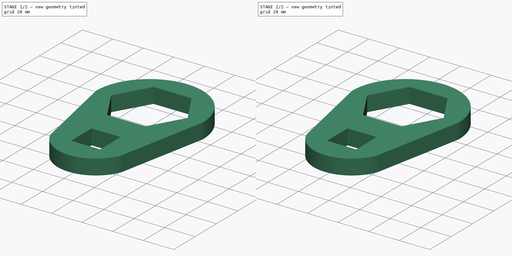
[diagram: build sequence overview — one tinted view per stage of 2, left to right]
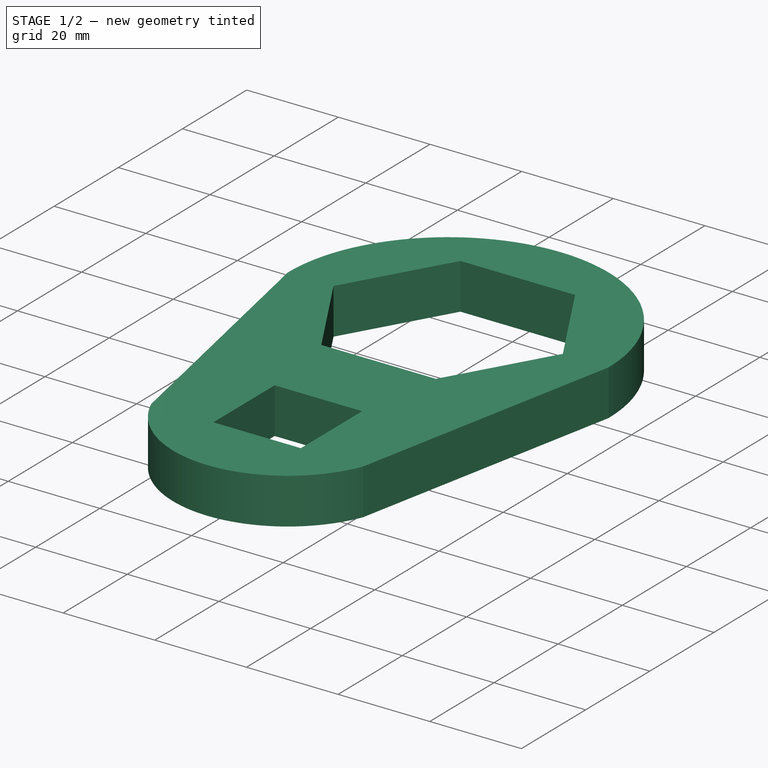
[diagram: stage 1 of 2 — iso view after this stage's code; geometry added in this stage tinted green]
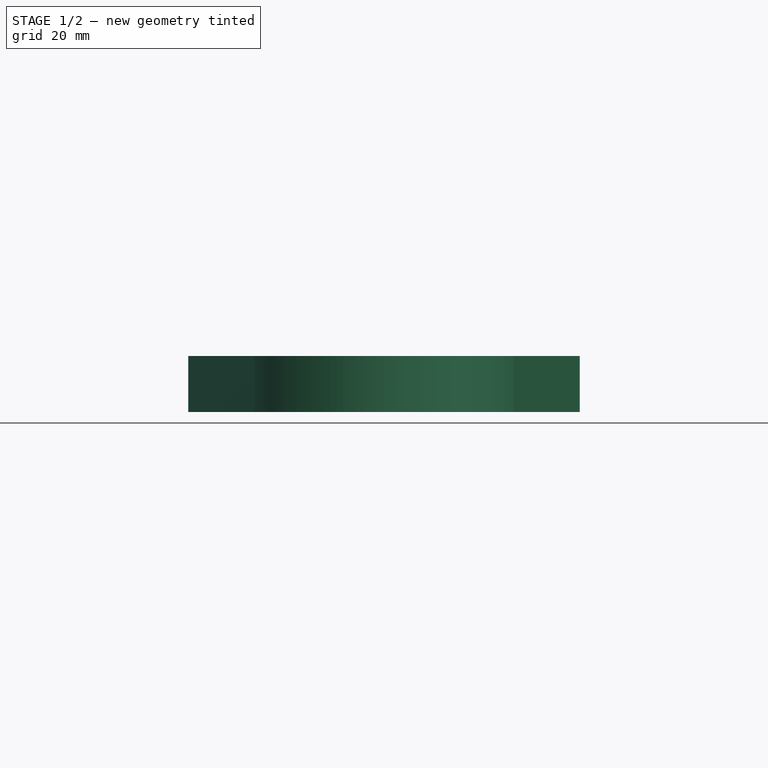
[diagram: stage 1 of 2 — front view after this stage's code; geometry added in this stage tinted green]
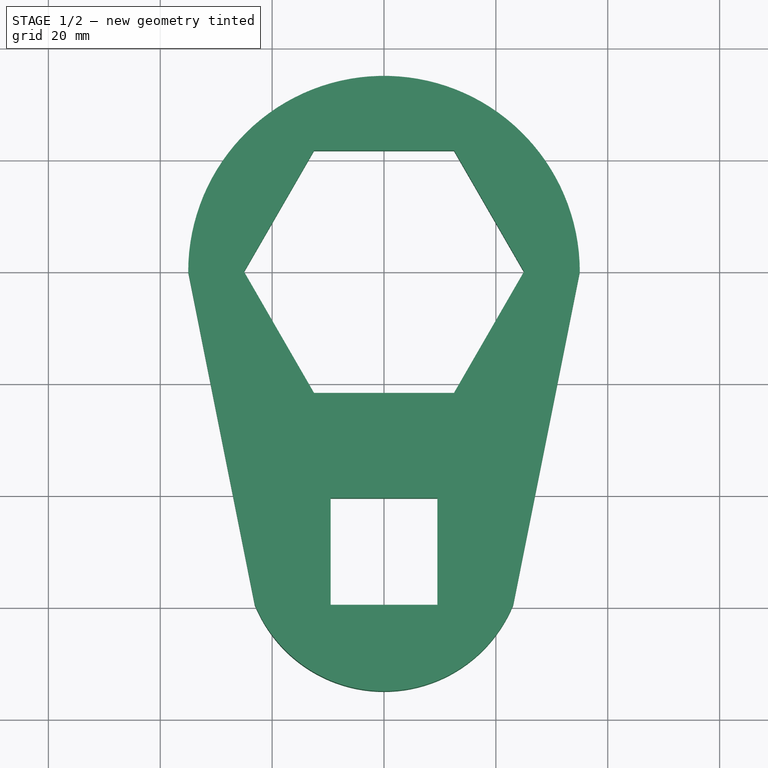
[diagram: stage 1 of 2 — top view after this stage's code; geometry added in this stage tinted green]
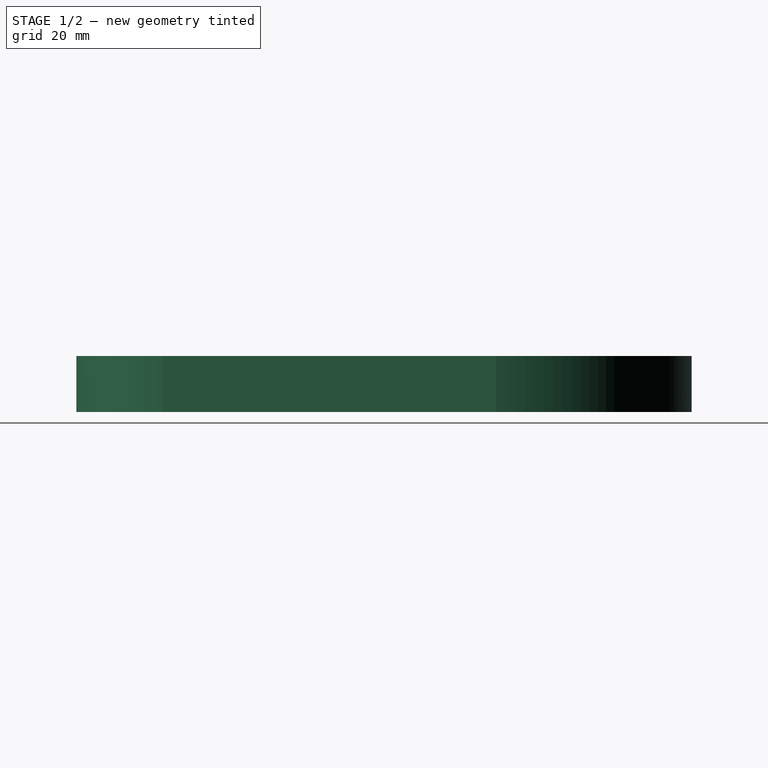
[diagram: stage 1 of 2 — right view after this stage's code; geometry added in this stage tinted green]
FCSTD DOCUMENT  (FreeCAD 0.18R16131 (Git))
Label: transmission wrench 50 19
License: All rights reserved
LicenseURL: http://en.wikipedia.org/wiki/All_rights_reserved
objects: Sketcher::SketchObject×1, PartDesign::Pad×1, PartDesign::Fillet×1, PartDesign::Body×1
note: 5 computed .brp shape members not serialized (recipe doc carries the construction recipe); baked Part::Feature solids carry a one-line shape summary decoded from their .brp

FEATURE [Sketcher::SketchObject] Sketch
  MapMode = 5
  Support = -> [XY_Plane]
  expr: Constraints[29] = 25.4 * 0.75 + 0.05
  sketch-geometry (17):
    g0: LineSegment StartX=-25.025 StartY=0 StartZ=0 EndX=-12.5125 EndY=-21.6723 EndZ=0
    g1: LineSegment StartX=-12.5125 StartY=-21.6723 StartZ=0 EndX=12.5125 EndY=-21.6723 EndZ=0
    g2: LineSegment StartX=12.5125 StartY=-21.6723 StartZ=0 EndX=25.025 EndY=0 EndZ=0
    g3: LineSegment StartX=25.025 StartY=0 StartZ=0 EndX=12.5125 EndY=21.6723 EndZ=0
    g4: LineSegment StartX=12.5125 StartY=21.6723 StartZ=0 EndX=-12.5125 EndY=21.6723 EndZ=0
    g5: LineSegment StartX=-12.5125 StartY=21.6723 StartZ=0 EndX=-25.025 EndY=0 EndZ=0
    g6: Circle [constr] CenterX=0 CenterY=0 CenterZ=0 NormalX=0 NormalY=0 NormalZ=1 AngleXU=0 Radius=25.025
    g7: LineSegment StartX=9.55 StartY=-59.55 StartZ=0 EndX=9.55 EndY=-40.45 EndZ=0
    g8: LineSegment StartX=9.55 StartY=-40.45 StartZ=0 EndX=-9.55 EndY=-40.45 EndZ=0
    g9: LineSegment StartX=-9.55 StartY=-40.45 StartZ=0 EndX=-9.55 EndY=-59.55 EndZ=0
    g10: LineSegment StartX=-9.55 StartY=-59.55 StartZ=0 EndX=9.55 EndY=-59.55 EndZ=0
    g11: Circle [constr] CenterX=0 CenterY=-50 CenterZ=0 NormalX=0 NormalY=0 NormalZ=1 AngleXU=0 Radius=13.5057
    g12: ArcOfCircle CenterX=0 CenterY=0 CenterZ=0 NormalX=0 NormalY=0 NormalZ=1 AngleXU=0 Radius=35 StartAngle=0 EndAngle=3.14159
    g13: ArcOfCircle CenterX=0 CenterY=-50 CenterZ=0 NormalX=0 NormalY=0 NormalZ=1 AngleXU=0 Radius=25 StartAngle=3.53355 EndAngle=5.89123
    g14: LineSegment StartX=-35 StartY=0 StartZ=0 EndX=-23.1041 EndY=-59.55 EndZ=0
    g15: LineSegment StartX=23.1041 StartY=-59.55 StartZ=0 EndX=35 EndY=0 EndZ=0
    g16: LineSegment [constr] StartX=-23.1041 StartY=-59.55 StartZ=0 EndX=23.1041 EndY=-59.55 EndZ=0
  constraints (44):
    c: Coincident(g0,g1)
    c: Coincident(g1,g2)
    c: Coincident(g2,g3)
    c: Coincident(g3,g4)
    c: Coincident(g4,g5)
    c: Coincident(g5,g0)
    c: Equal(g0, g1-g5) x5
    c: PointOnObject(g0,g6)
    c: PointOnObject(g1,g6)
    c: PointOnObject(g2,g6)
    c: PointOnObject(g3,g6)
    c: Symmetric(g0,g2,g-1)
    c: Coincident(g7,g8)
    c: Coincident(g8,g9)
    c: Coincident(g9,g10)
    c: Coincident(g10,g7)
    c: Equal(g7,g8)
    c: Equal(g7,g9)
    c: Equal(g7,g10)
    c: PointOnObject(g7,g11)
    c: PointOnObject(g8,g11)
    c: PointOnObject(g9,g11)
    c: PointOnObject(g10,g11)
    c: PointOnObject(g11,g-2)
    c: Parallel(g8,g-1)
    c: DistanceX(g9,g7) = 19.1
    c: DistanceY(g11,g-1) = 50
    c: PointOnObject(g12,g-1)
    c: PointOnObject(g12,g-1)
    c: Coincident(g14,g12)
    c: Coincident(g15,g12)
    c: Coincident(g12,g-1)
    c: Radius(g12) = 35
    c: Radius(g13) = 25
    c: Coincident(g15,g13)
    c: Coincident(g13,g14)
    c: Coincident(g13,g11)
    c: Coincident(g13,g16)
    c: Coincident(g16,g13)
    c: Parallel(g16,g-1)
    c: PointOnObject(g7,g16)
    c: Coincident(g6,g12)
    c: PointOnObject(g0,g-1)
    c: DistanceX(g0,g2) = 50.05
FEATURE [PartDesign::Pad] Pad
  Length = 10
  Length2 = 100
  Profile = -> Sketch
  Type = 0
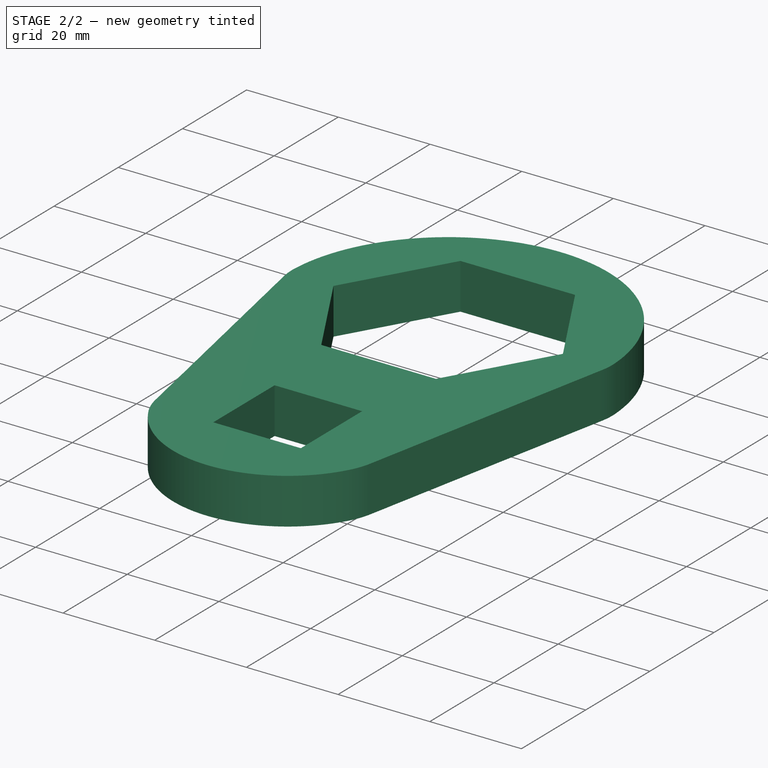
[diagram: stage 2 of 2 — iso view after this stage's code; geometry added in this stage tinted green]
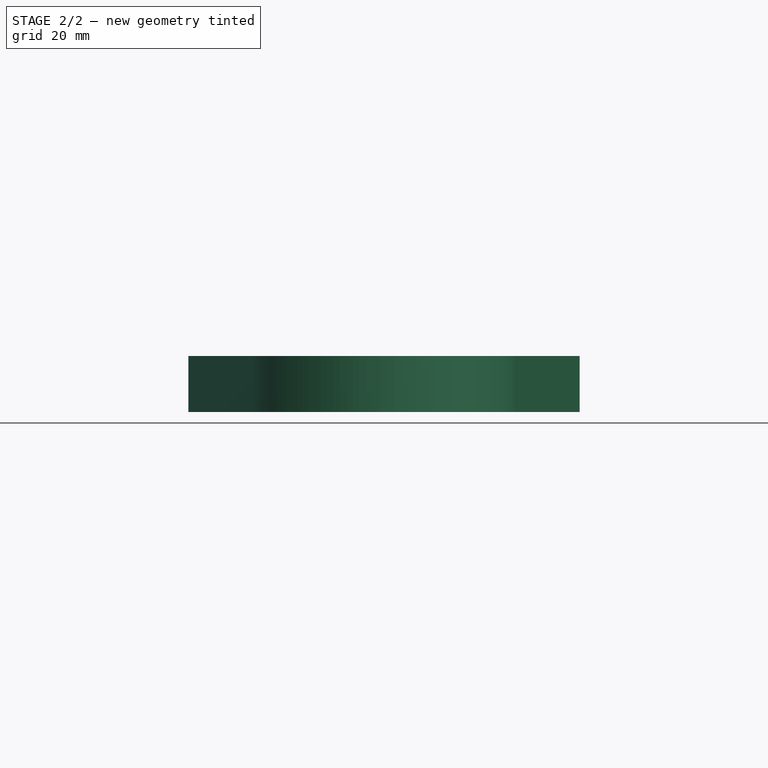
[diagram: stage 2 of 2 — front view after this stage's code; geometry added in this stage tinted green]
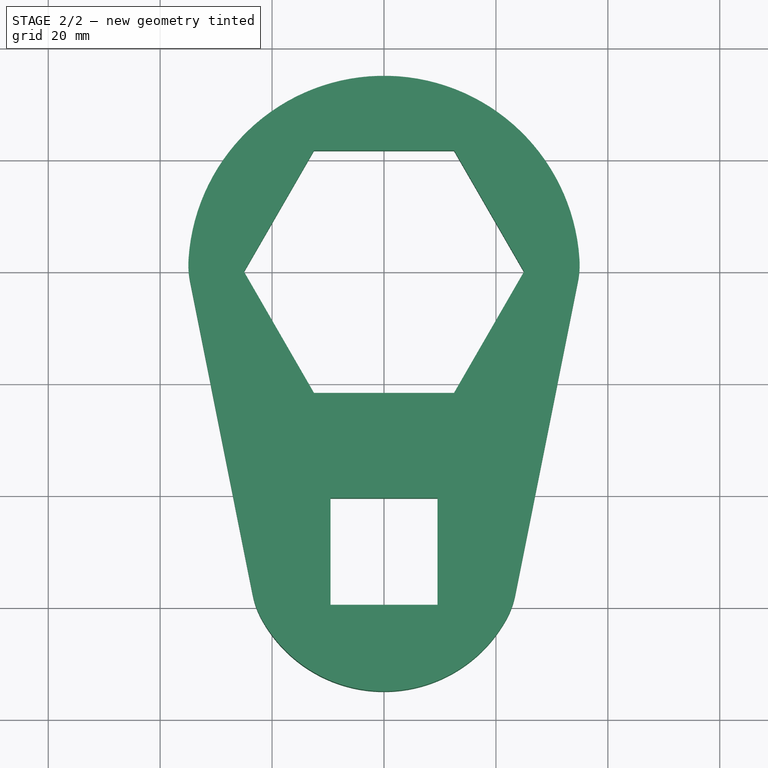
[diagram: stage 2 of 2 — top view after this stage's code; geometry added in this stage tinted green]
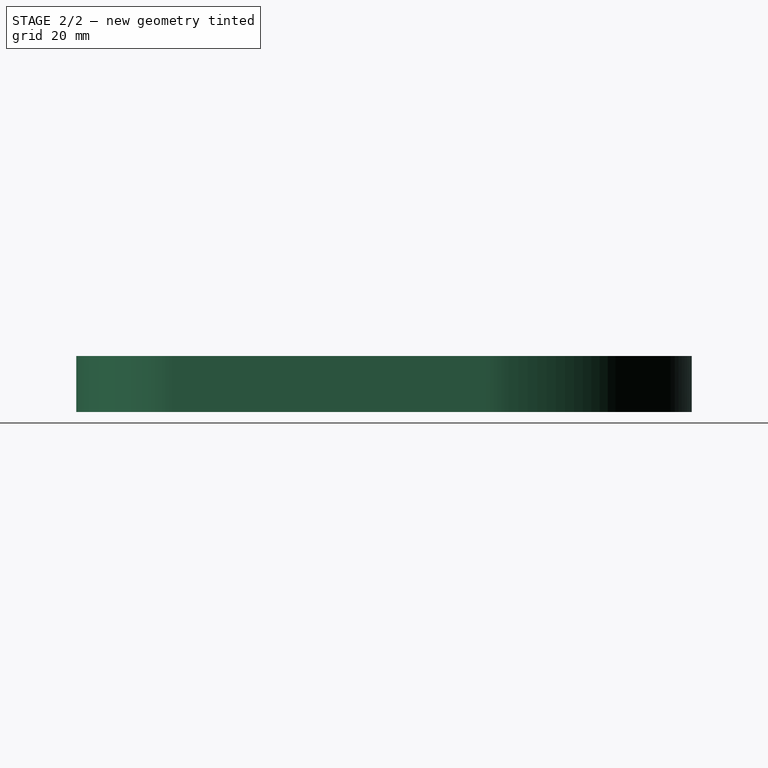
[diagram: stage 2 of 2 — right view after this stage's code; geometry added in this stage tinted green]
FEATURE [PartDesign::Fillet] Fillet
  Base = -> Pad [Edge2,Edge5,Edge8,Edge1]
  BaseFeature = -> Pad
  Radius = 15
FEATURE [PartDesign::Body] Body
  Group = -> [Sketch,Pad,Fillet]
  Origin = -> Origin
  Tip = -> Fillet
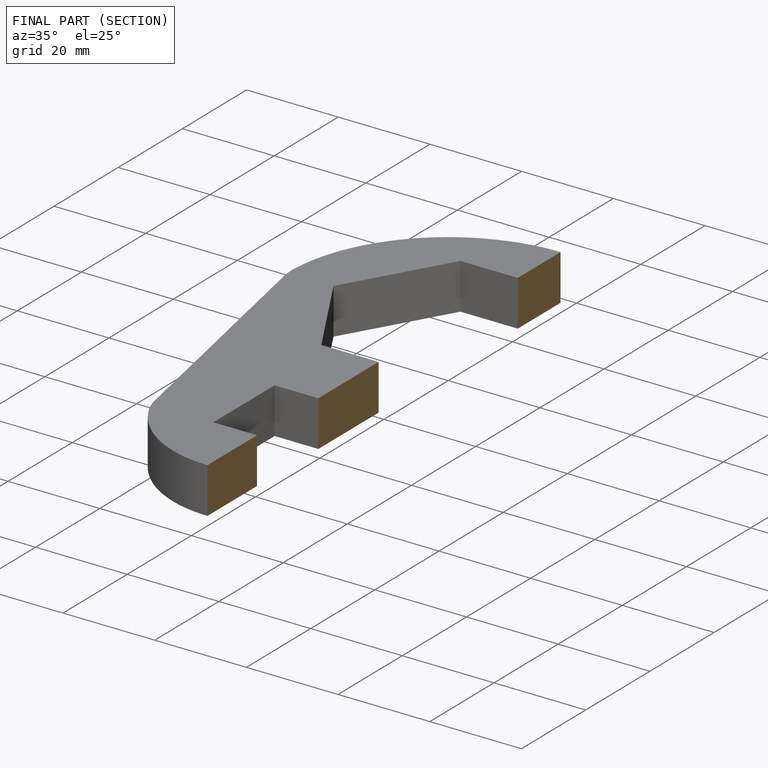
[diagram: finished part — half-section view (interior)]
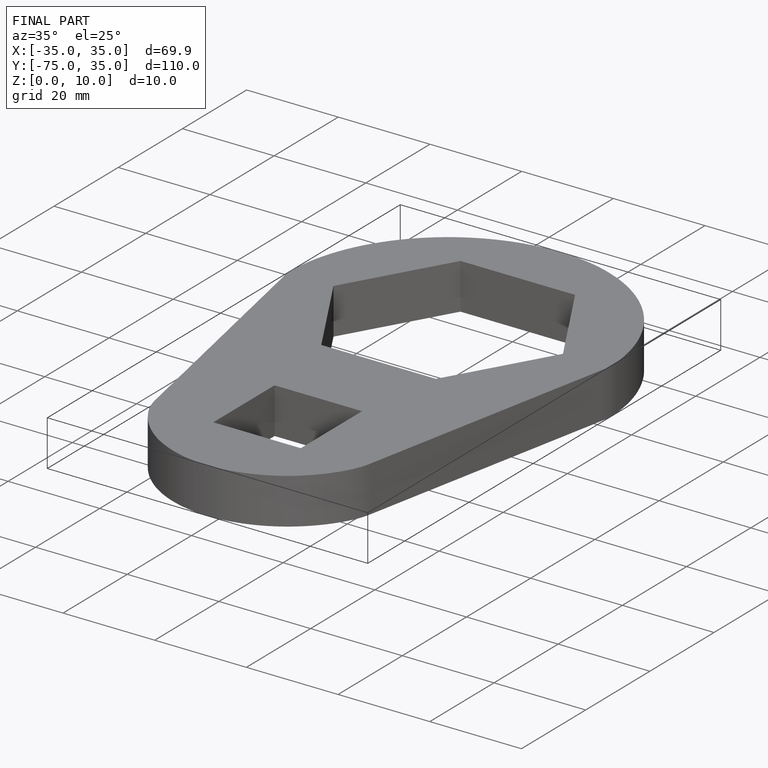
[diagram: finished part — iso view with bounding-box wireframe]
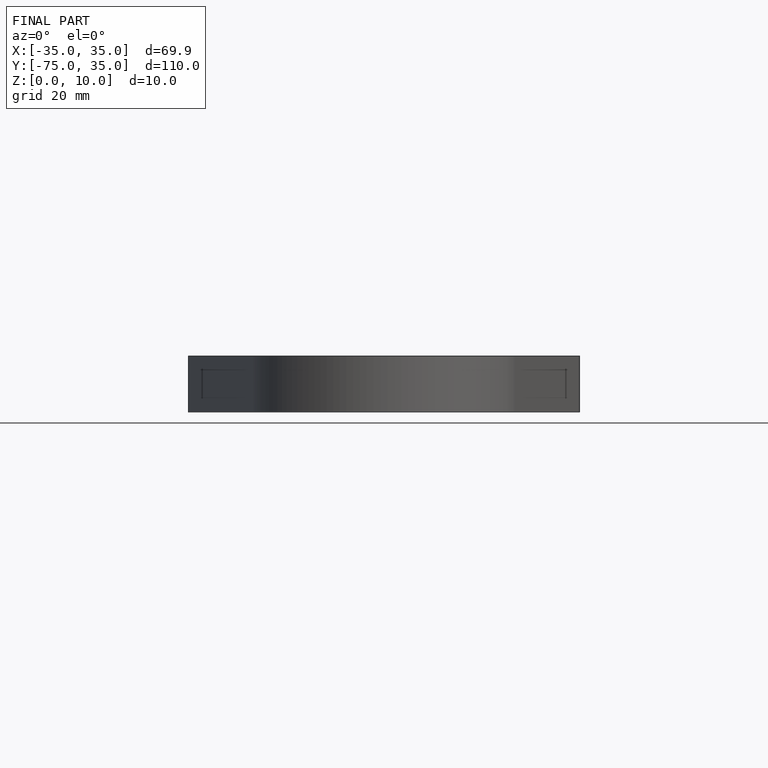
[diagram: finished part — front view with bounding-box wireframe]
